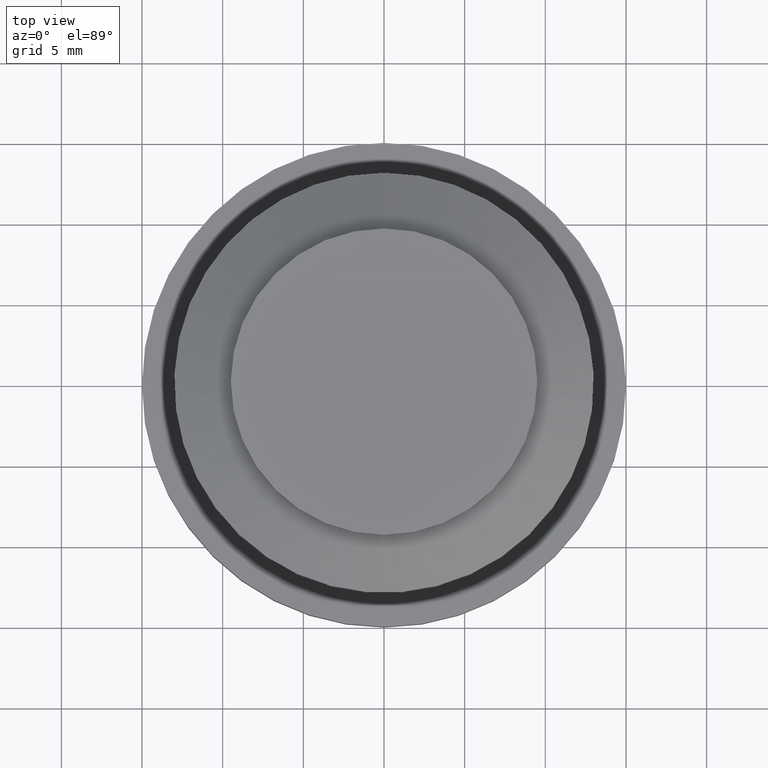
[diagram: clean part render]
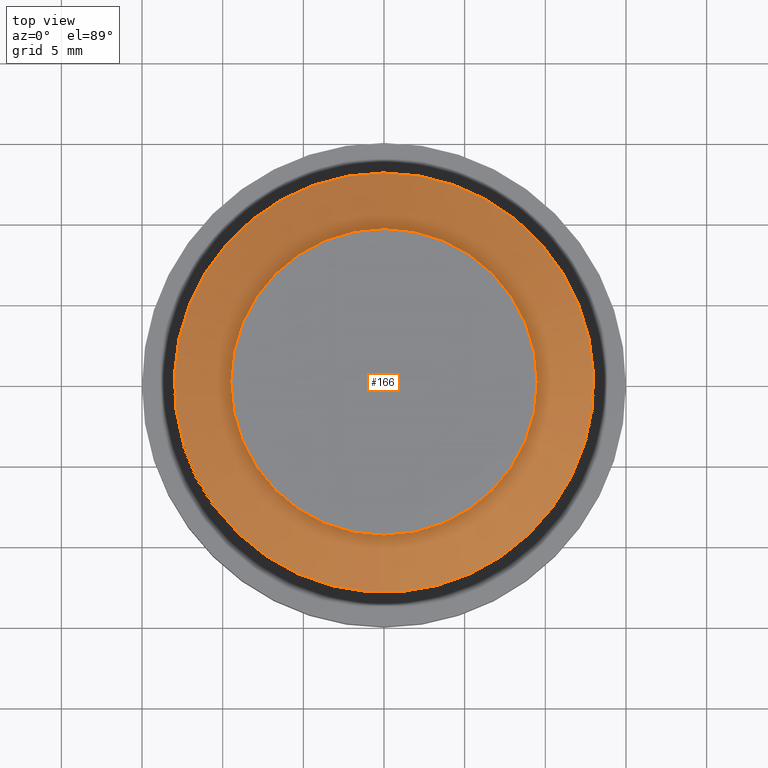
[diagram: same view with one face highlighted and labeled with its STEP entity id]
A machine part, top view. The second image highlights one B-rep face of the part: STEP entity #166.
In plain terms, the highlighted conical surface has half-angle 60.255 deg.
Its self-contained STEP definition (entity closure, byte-faithful):
#17=CONICAL_SURFACE('',#194,11.25,60.2551187030578);
#38=FACE_BOUND('',#77,.T.);
#52=FACE_OUTER_BOUND('',#76,.T.);
#76=EDGE_LOOP('',(#146));
#77=EDGE_LOOP('',(#147));
#95=CIRCLE('',#193,13.);
#96=CIRCLE('',#195,9.5);
#109=VERTEX_POINT('',#293);
#110=VERTEX_POINT('',#296);
#123=EDGE_CURVE('',#109,#109,#95,.T.);
#124=EDGE_CURVE('',#110,#110,#96,.T.);
#146=ORIENTED_EDGE('',*,*,#123,.F.);
#147=ORIENTED_EDGE('',*,*,#124,.F.);
#166=ADVANCED_FACE('',(#52,#38),#17,.T.);
#193=AXIS2_PLACEMENT_3D('',#294,#244,#245);
#194=AXIS2_PLACEMENT_3D('',#295,#246,#247);
#195=AXIS2_PLACEMENT_3D('',#297,#248,#249);
#244=DIRECTION('center_axis',(0.,0.,-1.));
#245=DIRECTION('ref_axis',(0.,1.,0.));
#246=DIRECTION('center_axis',(0.,0.,-1.));
#247=DIRECTION('ref_axis',(0.,1.,0.));
#248=DIRECTION('center_axis',(0.,0.,1.));
#249=DIRECTION('ref_axis',(0.,1.,0.));
#293=CARTESIAN_POINT('',(0.,13.,10.5));
#294=CARTESIAN_POINT('Origin',(0.,0.,10.5));
#295=CARTESIAN_POINT('Origin',(0.,0.,11.5));
#296=CARTESIAN_POINT('',(0.,9.5,12.5));
#297=CARTESIAN_POINT('Origin',(0.,0.,12.5));